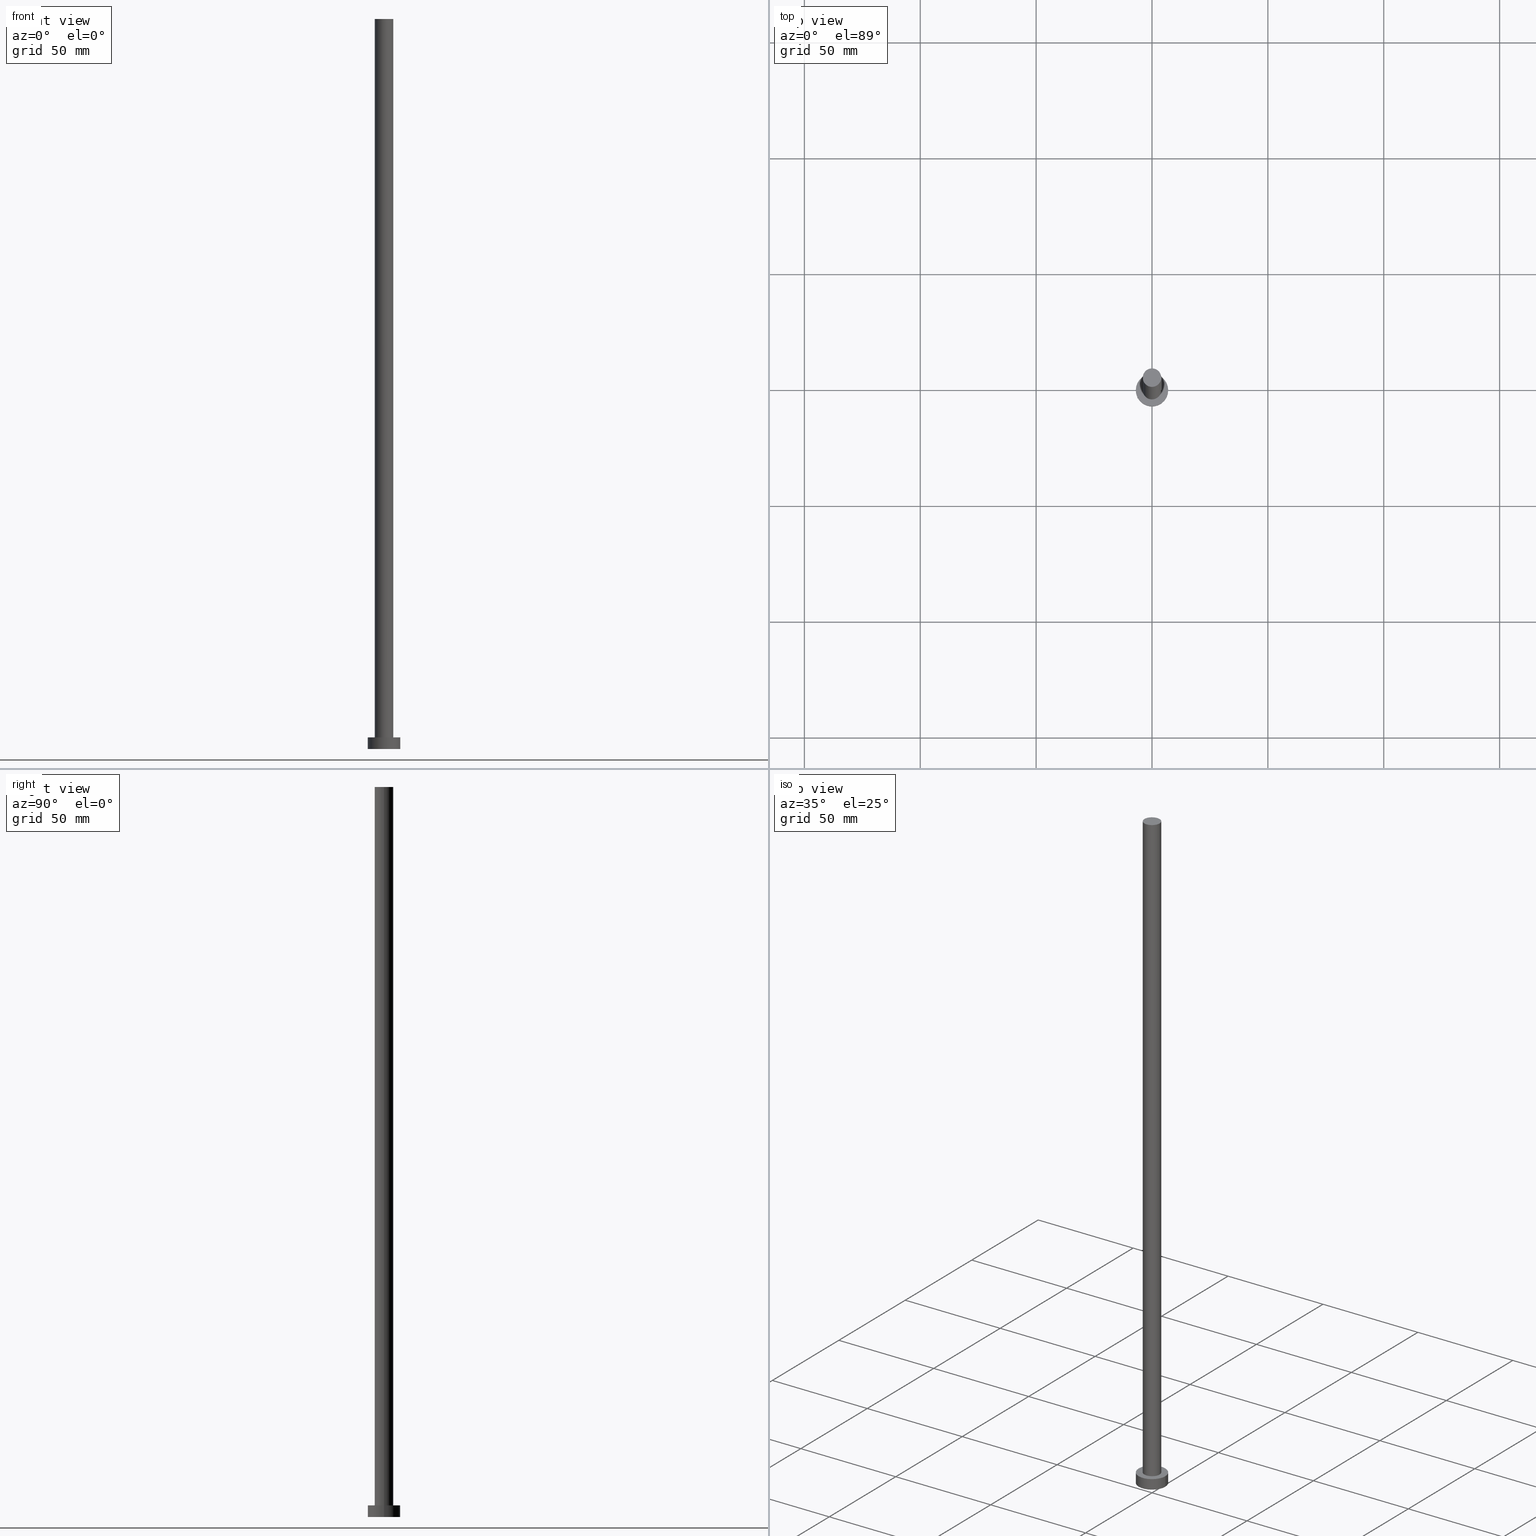
[diagram: canonical four-view strip — front | top / right | iso, engineering-drawing reading convention]
A machine part, canonical four-view strip (front | top / right | iso — engineering-drawing reading convention). The complete STEP part file that produces these views, byte-faithful:
ISO-10303-21;
HEADER;
FILE_DESCRIPTION (( 'STEP AP203' ),
    '1' );
FILE_NAME ('f084.STEP',
    '2023-02-13T11:44:28',
    ( '' ),
    ( '' ),
    'SwSTEP 2.0',
    'SolidWorks 2019',
    '' );
FILE_SCHEMA (( 'CONFIG_CONTROL_DESIGN' ));
ENDSEC;

DATA;
#1 = DIRECTION ( 'NONE',  ( 1.000000000000000000, 0.000000000000000000, 0.000000000000000000 ) ) ;
#2 = ORIENTED_EDGE ( 'NONE', *, *, #74, .F. ) ;
#3 = CIRCLE ( 'NONE', #33, 4.000000000000000000 ) ;
#4 = LINE ( 'NONE', #80, #190 ) ;
#5 = CARTESIAN_POINT ( 'NONE',  ( 0.000000000000000000, 0.000000000000000000, 0.000000000000000000 ) ) ;
#6 = ORIENTED_EDGE ( 'NONE', *, *, #35, .F. ) ;
#7 = ORIENTED_EDGE ( 'NONE', *, *, #10, .T. ) ;
#8 = APPROVAL_STATUS ( 'not_yet_approved' ) ;
#9 = APPROVAL_DATE_TIME ( #88, #168 ) ;
#10 = EDGE_CURVE ( 'NONE', #60, #192, #199, .T. ) ;
#11 = MECHANICAL_CONTEXT ( 'NONE', #134, 'mechanical' ) ;
#12 =( NAMED_UNIT ( * ) SI_UNIT ( $, .STERADIAN. ) SOLID_ANGLE_UNIT ( ) );
#13 = COORDINATED_UNIVERSAL_TIME_OFFSET ( 1, 0, .AHEAD. ) ;
#14 = DIRECTION ( 'NONE',  ( -1.000000000000000000, 0.000000000000000000, 0.000000000000000000 ) ) ;
#15 = CIRCLE ( 'NONE', #220, 4.000000000000000000 ) ;
#16 = AXIS2_PLACEMENT_3D ( 'NONE', #191, #40, #119 ) ;
#17 = CARTESIAN_POINT ( 'NONE',  ( -7.000000000000000000, 0.000000000000000000, 5.000000000000000000 ) ) ;
#18 = CARTESIAN_POINT ( 'NONE',  ( 0.000000000000000000, 0.000000000000000000, 315.0000000000000000 ) ) ;
#19 = COORDINATED_UNIVERSAL_TIME_OFFSET ( 1, 0, .AHEAD. ) ;
#20 = CARTESIAN_POINT ( 'NONE',  ( 7.000000000000000000, 8.572527594031473190E-16, 5.000000000000000000 ) ) ;
#21 = VERTEX_POINT ( 'NONE', #142 ) ;
#22 = EDGE_LOOP ( 'NONE', ( #102, #216, #23, #180 ) ) ;
#23 = ORIENTED_EDGE ( 'NONE', *, *, #247, .T. ) ;
#24 = ORIENTED_EDGE ( 'NONE', *, *, #74, .T. ) ;
#25 = DATE_AND_TIME ( #202, #49 ) ;
#26 = CARTESIAN_POINT ( 'NONE',  ( 0.000000000000000000, 0.000000000000000000, 5.000000000000000000 ) ) ;
#27 = EDGE_CURVE ( 'NONE', #105, #21, #135, .T. ) ;
#28 = CARTESIAN_POINT ( 'NONE',  ( 0.000000000000000000, 0.000000000000000000, 0.000000000000000000 ) ) ;
#29 = AXIS2_PLACEMENT_3D ( 'NONE', #34, #172, #187 ) ;
#30 = LOCAL_TIME ( 12, 44, 28.00000000000000000, #46 ) ;
#31 = APPROVAL_DATE_TIME ( #207, #242 ) ;
#32 = DIRECTION ( 'NONE',  ( -0.000000000000000000, -0.000000000000000000, -1.000000000000000000 ) ) ;
#33 = AXIS2_PLACEMENT_3D ( 'NONE', #76, #77, #205 ) ;
#34 = CARTESIAN_POINT ( 'NONE',  ( 0.000000000000000000, 0.000000000000000000, 5.000000000000000000 ) ) ;
#35 = EDGE_CURVE ( 'NONE', #238, #192, #4, .T. ) ;
#36 = PRODUCT_DEFINITION_FORMATION_WITH_SPECIFIED_SOURCE ( 'LIBOVOLN�', '', #133, .NOT_KNOWN. ) ;
#37 = CARTESIAN_POINT ( 'NONE',  ( 0.000000000000000000, 0.000000000000000000, 315.0000000000000000 ) ) ;
#38 = EDGE_LOOP ( 'NONE', ( #159, #45 ) ) ;
#39 = AXIS2_PLACEMENT_3D ( 'NONE', #26, #212, #117 ) ;
#40 = DIRECTION ( 'NONE',  ( -0.000000000000000000, -0.000000000000000000, -1.000000000000000000 ) ) ;
#41 = ORIENTED_EDGE ( 'NONE', *, *, #85, .T. ) ;
#42 = ADVANCED_FACE ( 'NONE', ( #101 ), #140, .T. ) ;
#43 = DIRECTION ( 'NONE',  ( 0.000000000000000000, 0.000000000000000000, 1.000000000000000000 ) ) ;
#44 = COORDINATED_UNIVERSAL_TIME_OFFSET ( 1, 0, .AHEAD. ) ;
#45 = ORIENTED_EDGE ( 'NONE', *, *, #27, .F. ) ;
#46 = COORDINATED_UNIVERSAL_TIME_OFFSET ( 1, 0, .AHEAD. ) ;
#47 = DIRECTION ( 'NONE',  ( -0.000000000000000000, -0.000000000000000000, -1.000000000000000000 ) ) ;
#48 = PERSON_AND_ORGANIZATION ( #153, #93 ) ;
#49 = LOCAL_TIME ( 12, 44, 28.00000000000000000, #44 ) ;
#50 = APPROVAL_STATUS ( 'not_yet_approved' ) ;
#51 = EDGE_CURVE ( 'NONE', #154, #237, #96, .T. ) ;
#52 = CARTESIAN_POINT ( 'NONE',  ( 0.000000000000000000, 0.000000000000000000, 315.0000000000000000 ) ) ;
#53 = PRODUCT_DEFINITION_SHAPE ( 'NONE', 'NONE',  #111 ) ;
#54 = CALENDAR_DATE ( 2023, 13, 2 ) ;
#55 = DIRECTION ( 'NONE',  ( -1.000000000000000000, 0.000000000000000000, 0.000000000000000000 ) ) ;
#56 = PRODUCT_RELATED_PRODUCT_CATEGORY ( 'detail', '', ( #133 ) ) ;
#57 = DATE_AND_TIME ( #171, #122 ) ;
#58 = DIRECTION ( 'NONE',  ( 1.000000000000000000, 0.000000000000000000, 0.000000000000000000 ) ) ;
#59 = ADVANCED_FACE ( 'NONE', ( #130 ), #243, .F. ) ;
#60 = VERTEX_POINT ( 'NONE', #203 ) ;
#61 = ORIENTED_EDGE ( 'NONE', *, *, #213, .T. ) ;
#62 = FACE_OUTER_BOUND ( 'NONE', #118, .T. ) ;
#63 = ORIENTED_EDGE ( 'NONE', *, *, #10, .F. ) ;
#64 = DIRECTION ( 'NONE',  ( 1.000000000000000000, 0.000000000000000000, -0.000000000000000000 ) ) ;
#65 = DIRECTION ( 'NONE',  ( 1.000000000000000000, 0.000000000000000000, -0.000000000000000000 ) ) ;
#66 = DIRECTION ( 'NONE',  ( -0.000000000000000000, -0.000000000000000000, -1.000000000000000000 ) ) ;
#67 = PERSON_AND_ORGANIZATION ( #153, #93 ) ;
#68 = AXIS2_PLACEMENT_3D ( 'NONE', #120, #99, #195 ) ;
#69 = CARTESIAN_POINT ( 'NONE',  ( 0.000000000000000000, 0.000000000000000000, 0.000000000000000000 ) ) ;
#70 = APPROVAL_ROLE ( '' ) ;
#71 = VECTOR ( 'NONE', #72, 1000.000000000000000 ) ;
#72 = DIRECTION ( 'NONE',  ( -0.000000000000000000, -0.000000000000000000, -1.000000000000000000 ) ) ;
#73 = CARTESIAN_POINT ( 'NONE',  ( 4.000000000000000000, 4.898587196589412829E-16, 5.000000000000000000 ) ) ;
#74 = EDGE_CURVE ( 'NONE', #144, #238, #15, .T. ) ;
#75 = APPROVAL_PERSON_ORGANIZATION ( #107, #168, #70 ) ;
#76 = CARTESIAN_POINT ( 'NONE',  ( 0.000000000000000000, 0.000000000000000000, 5.000000000000000000 ) ) ;
#77 = DIRECTION ( 'NONE',  ( 0.000000000000000000, 0.000000000000000000, 1.000000000000000000 ) ) ;
#78 = ORIENTED_EDGE ( 'NONE', *, *, #85, .F. ) ;
#79 = CC_DESIGN_APPROVAL ( #209, ( #111 ) ) ;
#80 = CARTESIAN_POINT ( 'NONE',  ( 4.000000000000000000, 4.898587196589412829E-16, 315.0000000000000000 ) ) ;
#81 = DIRECTION ( 'NONE',  ( 0.000000000000000000, 0.000000000000000000, 1.000000000000000000 ) ) ;
#82 = CARTESIAN_POINT ( 'NONE',  ( 0.000000000000000000, 0.000000000000000000, 5.000000000000000000 ) ) ;
#83 = ORIENTED_EDGE ( 'NONE', *, *, #51, .T. ) ;
#84 = PERSON_AND_ORGANIZATION ( #153, #93 ) ;
#85 = EDGE_CURVE ( 'NONE', #154, #21, #206, .T. ) ;
#86 = DATE_TIME_ROLE ( 'creation_date' ) ;
#87 = CARTESIAN_POINT ( 'NONE',  ( 0.000000000000000000, 0.000000000000000000, 5.000000000000000000 ) ) ;
#88 = DATE_AND_TIME ( #126, #30 ) ;
#89 = DIRECTION ( 'NONE',  ( 0.000000000000000000, 0.000000000000000000, 1.000000000000000000 ) ) ;
#90 = APPLICATION_PROTOCOL_DEFINITION ( 'international standard', 'config_control_design', 1994, #162 ) ;
#91 = CARTESIAN_POINT ( 'NONE',  ( 0.000000000000000000, 0.000000000000000000, 315.0000000000000000 ) ) ;
#92 = ADVANCED_FACE ( 'NONE', ( #127 ), #200, .T. ) ;
#93 = ORGANIZATION ( 'NEUR�EN�', 'NEUR�EN�', '' ) ;
#94 = FACE_BOUND ( 'NONE', #143, .T. ) ;
#95 = DIRECTION ( 'NONE',  ( -0.000000000000000000, -0.000000000000000000, -1.000000000000000000 ) ) ;
#96 = CIRCLE ( 'NONE', #39, 7.000000000000000000 ) ;
#97 = APPROVAL_STATUS ( 'not_yet_approved' ) ;
#98 = CC_DESIGN_SECURITY_CLASSIFICATION ( #136, ( #36 ) ) ;
#99 = DIRECTION ( 'NONE',  ( 0.000000000000000000, 0.000000000000000000, 1.000000000000000000 ) ) ;
#100 = CARTESIAN_POINT ( 'NONE',  ( 4.000000000000000000, 4.898587196589412829E-16, 315.0000000000000000 ) ) ;
#101 = FACE_OUTER_BOUND ( 'NONE', #176, .T. ) ;
#102 = ORIENTED_EDGE ( 'NONE', *, *, #139, .F. ) ;
#103 = CIRCLE ( 'NONE', #138, 7.000000000000000000 ) ;
#104 =( LENGTH_UNIT ( ) NAMED_UNIT ( * ) SI_UNIT ( .MILLI., .METRE. ) );
#105 = VERTEX_POINT ( 'NONE', #252 ) ;
#106 = DIRECTION ( 'NONE',  ( 0.000000000000000000, 0.000000000000000000, 1.000000000000000000 ) ) ;
#107 = PERSON_AND_ORGANIZATION ( #153, #93 ) ;
#108 = AXIS2_PLACEMENT_3D ( 'NONE', #254, #137, #14 ) ;
#109 = APPLICATION_PROTOCOL_DEFINITION ( 'international standard', 'config_control_design', 1994, #134 ) ;
#110 = CARTESIAN_POINT ( 'NONE',  ( -7.000000000000000000, 0.000000000000000000, 5.000000000000000000 ) ) ;
#111 = PRODUCT_DEFINITION ( 'NEZN�M�', '', #36, #197 ) ;
#112 = LINE ( 'NONE', #170, #71 ) ;
#113 = EDGE_CURVE ( 'NONE', #237, #105, #208, .T. ) ;
#114 = AXIS2_PLACEMENT_3D ( 'NONE', #87, #189, #151 ) ;
#115 = PLANE ( 'NONE',  #246 ) ;
#116 = DIRECTION ( 'NONE',  ( 0.000000000000000000, 0.000000000000000000, 1.000000000000000000 ) ) ;
#117 = DIRECTION ( 'NONE',  ( 1.000000000000000000, 0.000000000000000000, 0.000000000000000000 ) ) ;
#118 = EDGE_LOOP ( 'NONE', ( #155, #179, #41, #218 ) ) ;
#119 = DIRECTION ( 'NONE',  ( -1.000000000000000000, 0.000000000000000000, 0.000000000000000000 ) ) ;
#120 = CARTESIAN_POINT ( 'NONE',  ( 0.000000000000000000, 0.000000000000000000, 0.000000000000000000 ) ) ;
#121 = CC_DESIGN_APPROVAL ( #242, ( #136 ) ) ;
#122 = LOCAL_TIME ( 12, 44, 28.00000000000000000, #19 ) ;
#123 = ORIENTED_EDGE ( 'NONE', *, *, #247, .F. ) ;
#124 = ORIENTED_EDGE ( 'NONE', *, *, #210, .T. ) ;
#125 = AXIS2_PLACEMENT_3D ( 'NONE', #69, #89, #248 ) ;
#126 = CALENDAR_DATE ( 2023, 13, 2 ) ;
#127 = FACE_OUTER_BOUND ( 'NONE', #214, .T. ) ;
#128 = COORDINATED_UNIVERSAL_TIME_OFFSET ( 1, 0, .AHEAD. ) ;
#129 = PERSON_AND_ORGANIZATION_ROLE ( 'creator' ) ;
#130 = FACE_OUTER_BOUND ( 'NONE', #38, .T. ) ;
#131 = CLOSED_SHELL ( 'NONE', ( #149, #92, #236, #217, #59, #156, #42 ) ) ;
#132 = DIRECTION ( 'NONE',  ( 0.000000000000000000, 0.000000000000000000, 1.000000000000000000 ) ) ;
#133 = PRODUCT ( 'f084', 'f084', '', ( #11 ) ) ;
#134 = APPLICATION_CONTEXT ( 'configuration controlled 3d designs of mechanical parts and assemblies' ) ;
#135 = CIRCLE ( 'NONE', #68, 7.000000000000000000 ) ;
#136 = SECURITY_CLASSIFICATION ( '', '', #221 ) ;
#137 = DIRECTION ( 'NONE',  ( -0.000000000000000000, -0.000000000000000000, -1.000000000000000000 ) ) ;
#138 = AXIS2_PLACEMENT_3D ( 'NONE', #5, #240, #1 ) ;
#139 = EDGE_CURVE ( 'NONE', #238, #144, #255, .T. ) ;
#140 = PLANE ( 'NONE',  #160 ) ;
#141 = EDGE_LOOP ( 'NONE', ( #83, #61 ) ) ;
#142 = CARTESIAN_POINT ( 'NONE',  ( -7.000000000000000000, 0.000000000000000000, 0.000000000000000000 ) ) ;
#143 = EDGE_LOOP ( 'NONE', ( #63, #123 ) ) ;
#144 = VERTEX_POINT ( 'NONE', #152 ) ;
#145 = VECTOR ( 'NONE', #32, 1000.000000000000000 ) ;
#146 = CC_DESIGN_PERSON_AND_ORGANIZATION_ASSIGNMENT ( #48, #147, ( #136 ) ) ;
#147 = PERSON_AND_ORGANIZATION_ROLE ( 'classification_officer' ) ;
#148 = DIRECTION ( 'NONE',  ( 1.000000000000000000, 0.000000000000000000, 0.000000000000000000 ) ) ;
#149 = ADVANCED_FACE ( 'NONE', ( #233 ), #186, .T. ) ;
#150 = FACE_OUTER_BOUND ( 'NONE', #141, .T. ) ;
#151 = DIRECTION ( 'NONE',  ( -1.000000000000000000, 0.000000000000000000, 0.000000000000000000 ) ) ;
#152 = CARTESIAN_POINT ( 'NONE',  ( -4.000000000000000000, 0.000000000000000000, 315.0000000000000000 ) ) ;
#153 = PERSON ( 'NEUR�EN�', 'NEUR�EN�', 'NEUR�EN�', ('NEUR�EN�'), ('NEUR�EN�'), ('NEUR�EN�') ) ;
#154 = VERTEX_POINT ( 'NONE', #17 ) ;
#155 = ORIENTED_EDGE ( 'NONE', *, *, #113, .F. ) ;
#156 = ADVANCED_FACE ( 'NONE', ( #227 ), #229, .T. ) ;
#157 = APPROVAL_PERSON_ORGANIZATION ( #167, #209, #249 ) ;
#158 = ORIENTED_EDGE ( 'NONE', *, *, #113, .T. ) ;
#159 = ORIENTED_EDGE ( 'NONE', *, *, #225, .F. ) ;
#160 = AXIS2_PLACEMENT_3D ( 'NONE', #37, #81, #65 ) ;
#161 = CARTESIAN_POINT ( 'NONE',  ( 0.000000000000000000, 0.000000000000000000, 5.000000000000000000 ) ) ;
#162 = APPLICATION_CONTEXT ( 'configuration controlled 3d designs of mechanical parts and assemblies' ) ;
#163 = CALENDAR_DATE ( 2023, 13, 2 ) ;
#164 = PERSON_AND_ORGANIZATION_ROLE ( 'creator' ) ;
#165 = PERSON_AND_ORGANIZATION_ROLE ( 'design_supplier' ) ;
#166 = UNCERTAINTY_MEASURE_WITH_UNIT (LENGTH_MEASURE( 1.000000000000000082E-05 ), #104, 'distance_accuracy_value', 'NONE');
#167 = PERSON_AND_ORGANIZATION ( #153, #93 ) ;
#168 = APPROVAL ( #50, 'NEUR�EN�' ) ;
#169 = DIRECTION ( 'NONE',  ( 1.000000000000000000, 0.000000000000000000, 0.000000000000000000 ) ) ;
#170 = CARTESIAN_POINT ( 'NONE',  ( -4.000000000000000000, 0.000000000000000000, 315.0000000000000000 ) ) ;
#171 = CALENDAR_DATE ( 2023, 13, 2 ) ;
#172 = DIRECTION ( 'NONE',  ( 0.000000000000000000, 0.000000000000000000, 1.000000000000000000 ) ) ;
#173 = DIRECTION ( 'NONE',  ( 0.000000000000000000, 0.000000000000000000, 1.000000000000000000 ) ) ;
#174 = LOCAL_TIME ( 12, 44, 28.00000000000000000, #13 ) ;
#175 = CC_DESIGN_DATE_AND_TIME_ASSIGNMENT ( #57, #253, ( #136 ) ) ;
#176 = EDGE_LOOP ( 'NONE', ( #24, #196 ) ) ;
#177 = CC_DESIGN_PERSON_AND_ORGANIZATION_ASSIGNMENT ( #67, #165, ( #36 ) ) ;
#178 = CC_DESIGN_APPROVAL ( #168, ( #36 ) ) ;
#179 = ORIENTED_EDGE ( 'NONE', *, *, #51, .F. ) ;
#180 = ORIENTED_EDGE ( 'NONE', *, *, #210, .F. ) ;
#181 = ADVANCED_BREP_SHAPE_REPRESENTATION ( 'f084', ( #244, #226 ), #201 ) ;
#182 = AXIS2_PLACEMENT_3D ( 'NONE', #18, #173, #58 ) ;
#183 = APPROVAL_DATE_TIME ( #25, #209 ) ;
#184 = PERSON_AND_ORGANIZATION_ROLE ( 'design_owner' ) ;
#185 =( NAMED_UNIT ( * ) PLANE_ANGLE_UNIT ( ) SI_UNIT ( $, .RADIAN. ) );
#186 = CYLINDRICAL_SURFACE ( 'NONE', #108, 4.000000000000000000 ) ;
#187 = DIRECTION ( 'NONE',  ( 1.000000000000000000, 0.000000000000000000, 0.000000000000000000 ) ) ;
#188 = CC_DESIGN_DATE_AND_TIME_ASSIGNMENT ( #219, #86, ( #111 ) ) ;
#189 = DIRECTION ( 'NONE',  ( -0.000000000000000000, -0.000000000000000000, -1.000000000000000000 ) ) ;
#190 = VECTOR ( 'NONE', #66, 1000.000000000000000 ) ;
#191 = CARTESIAN_POINT ( 'NONE',  ( 0.000000000000000000, 0.000000000000000000, 5.000000000000000000 ) ) ;
#192 = VERTEX_POINT ( 'NONE', #73 ) ;
#193 = EDGE_LOOP ( 'NONE', ( #6, #2, #124, #7 ) ) ;
#194 = CARTESIAN_POINT ( 'NONE',  ( 7.000000000000000000, 8.572527594031473190E-16, 5.000000000000000000 ) ) ;
#195 = DIRECTION ( 'NONE',  ( 1.000000000000000000, 0.000000000000000000, 0.000000000000000000 ) ) ;
#196 = ORIENTED_EDGE ( 'NONE', *, *, #139, .T. ) ;
#197 = DESIGN_CONTEXT ( 'detailed design', #162, 'design' ) ;
#198 = ORIENTED_EDGE ( 'NONE', *, *, #213, .F. ) ;
#199 = CIRCLE ( 'NONE', #204, 4.000000000000000000 ) ;
#200 = CYLINDRICAL_SURFACE ( 'NONE', #114, 7.000000000000000000 ) ;
#201 =( GEOMETRIC_REPRESENTATION_CONTEXT ( 3 ) GLOBAL_UNCERTAINTY_ASSIGNED_CONTEXT ( ( #166 ) ) GLOBAL_UNIT_ASSIGNED_CONTEXT ( ( #104, #185, #12 ) ) REPRESENTATION_CONTEXT ( 'NONE', 'WORKASPACE' ) );
#202 = CALENDAR_DATE ( 2023, 13, 2 ) ;
#203 = CARTESIAN_POINT ( 'NONE',  ( -4.000000000000000000, 0.000000000000000000, 5.000000000000000000 ) ) ;
#204 = AXIS2_PLACEMENT_3D ( 'NONE', #161, #43, #241 ) ;
#205 = DIRECTION ( 'NONE',  ( 1.000000000000000000, 0.000000000000000000, 0.000000000000000000 ) ) ;
#206 = LINE ( 'NONE', #110, #230 ) ;
#207 = DATE_AND_TIME ( #54, #174 ) ;
#208 = LINE ( 'NONE', #20, #145 ) ;
#209 = APPROVAL ( #8, 'NEUR�EN�' ) ;
#210 = EDGE_CURVE ( 'NONE', #144, #60, #112, .T. ) ;
#211 = CC_DESIGN_PERSON_AND_ORGANIZATION_ASSIGNMENT ( #245, #129, ( #36 ) ) ;
#212 = DIRECTION ( 'NONE',  ( 0.000000000000000000, 0.000000000000000000, 1.000000000000000000 ) ) ;
#213 = EDGE_CURVE ( 'NONE', #237, #154, #239, .T. ) ;
#214 = EDGE_LOOP ( 'NONE', ( #198, #158, #235, #78 ) ) ;
#215 = CYLINDRICAL_SURFACE ( 'NONE', #16, 7.000000000000000000 ) ;
#216 = ORIENTED_EDGE ( 'NONE', *, *, #35, .T. ) ;
#217 = ADVANCED_FACE ( 'NONE', ( #94, #150 ), #115, .T. ) ;
#218 = ORIENTED_EDGE ( 'NONE', *, *, #225, .T. ) ;
#219 = DATE_AND_TIME ( #163, #223 ) ;
#220 = AXIS2_PLACEMENT_3D ( 'NONE', #52, #132, #169 ) ;
#221 = SECURITY_CLASSIFICATION_LEVEL ( 'unclassified' ) ;
#222 = PERSON_AND_ORGANIZATION ( #153, #93 ) ;
#223 = LOCAL_TIME ( 12, 44, 28.00000000000000000, #128 ) ;
#224 = PERSON_AND_ORGANIZATION ( #153, #93 ) ;
#225 = EDGE_CURVE ( 'NONE', #21, #105, #103, .T. ) ;
#226 = AXIS2_PLACEMENT_3D ( 'NONE', #28, #106, #148 ) ;
#227 = FACE_OUTER_BOUND ( 'NONE', #193, .T. ) ;
#228 = APPROVAL_ROLE ( '' ) ;
#229 = CYLINDRICAL_SURFACE ( 'NONE', #234, 4.000000000000000000 ) ;
#230 = VECTOR ( 'NONE', #47, 1000.000000000000000 ) ;
#231 = CC_DESIGN_PERSON_AND_ORGANIZATION_ASSIGNMENT ( #84, #164, ( #111 ) ) ;
#232 = APPROVAL_PERSON_ORGANIZATION ( #224, #242, #228 ) ;
#233 = FACE_OUTER_BOUND ( 'NONE', #22, .T. ) ;
#234 = AXIS2_PLACEMENT_3D ( 'NONE', #91, #95, #55 ) ;
#235 = ORIENTED_EDGE ( 'NONE', *, *, #27, .T. ) ;
#236 = ADVANCED_FACE ( 'NONE', ( #62 ), #215, .T. ) ;
#237 = VERTEX_POINT ( 'NONE', #194 ) ;
#238 = VERTEX_POINT ( 'NONE', #100 ) ;
#239 = CIRCLE ( 'NONE', #29, 7.000000000000000000 ) ;
#240 = DIRECTION ( 'NONE',  ( 0.000000000000000000, 0.000000000000000000, 1.000000000000000000 ) ) ;
#241 = DIRECTION ( 'NONE',  ( 1.000000000000000000, 0.000000000000000000, 0.000000000000000000 ) ) ;
#242 = APPROVAL ( #97, 'NEUR�EN�' ) ;
#243 = PLANE ( 'NONE',  #125 ) ;
#244 = MANIFOLD_SOLID_BREP ( 'P�idat vysunut�m3', #131 ) ;
#245 = PERSON_AND_ORGANIZATION ( #153, #93 ) ;
#246 = AXIS2_PLACEMENT_3D ( 'NONE', #82, #116, #64 ) ;
#247 = EDGE_CURVE ( 'NONE', #192, #60, #3, .T. ) ;
#248 = DIRECTION ( 'NONE',  ( 1.000000000000000000, 0.000000000000000000, -0.000000000000000000 ) ) ;
#249 = APPROVAL_ROLE ( '' ) ;
#250 = CC_DESIGN_PERSON_AND_ORGANIZATION_ASSIGNMENT ( #222, #184, ( #133 ) ) ;
#251 = SHAPE_DEFINITION_REPRESENTATION ( #53, #181 ) ;
#252 = CARTESIAN_POINT ( 'NONE',  ( 7.000000000000000000, 8.572527594031473190E-16, 0.000000000000000000 ) ) ;
#253 = DATE_TIME_ROLE ( 'classification_date' ) ;
#254 = CARTESIAN_POINT ( 'NONE',  ( 0.000000000000000000, 0.000000000000000000, 315.0000000000000000 ) ) ;
#255 = CIRCLE ( 'NONE', #182, 4.000000000000000000 ) ;
ENDSEC;
END-ISO-10303-21;
